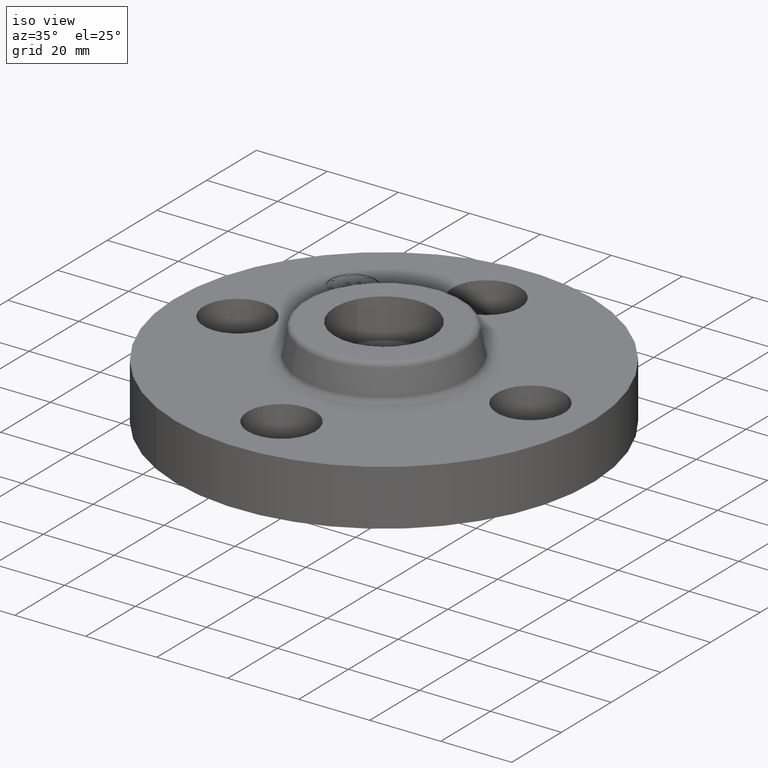
[diagram: clean part render]
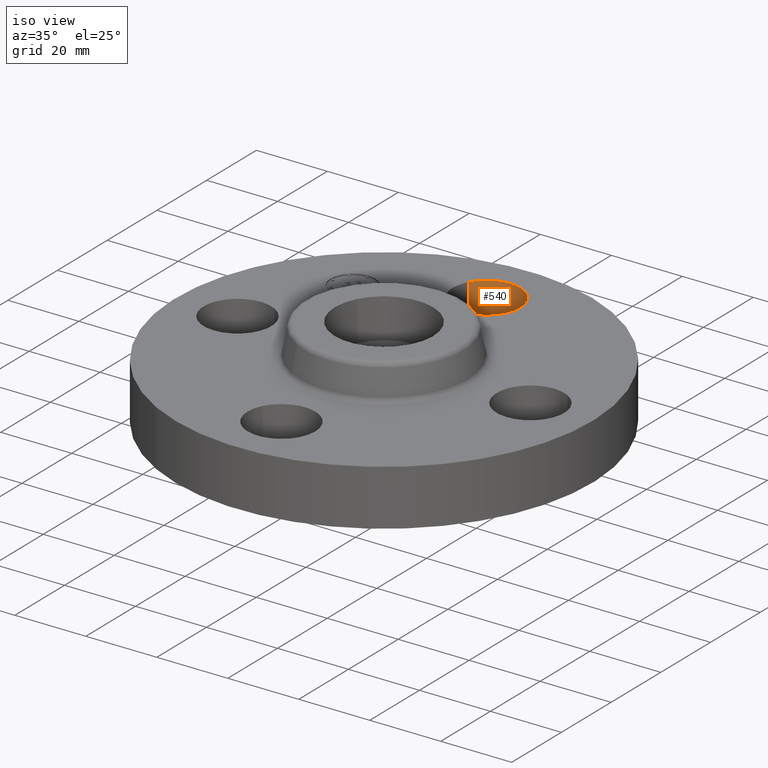
[diagram: same view with one face highlighted and labeled with its STEP entity id]
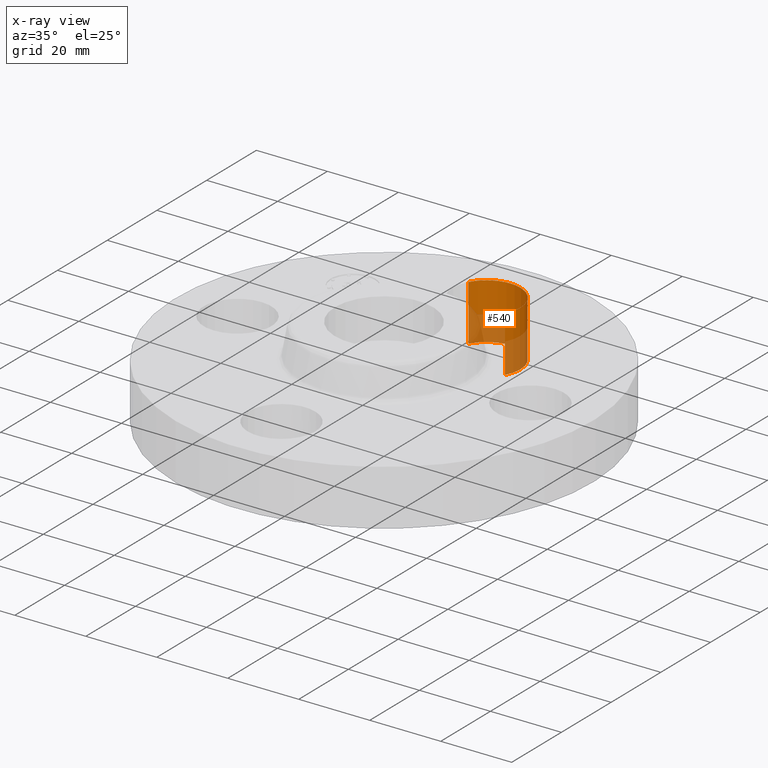
[diagram: x-ray of the same camera — body ghosted, the highlighted face saturated]
A machine part, iso view. The second image highlights one B-rep face of the part: STEP entity #540.
The next image is the same camera in x-ray: the body ghosted, the highlighted face saturated — about 44% of this face is hidden behind the body in this view.
In plain terms, the highlighted cylindrical surface (partial cylindrical patch) has radius 9.525 mm, axis along (0, -0, -1).
Its self-contained STEP definition (entity closure, byte-faithful):
#373=AXIS2_PLACEMENT_3D('Circle Axis2P3D',#371,#372,$) ;
#513=AXIS2_PLACEMENT_3D('Cylinder Axis2P3D',#510,#511,#512) ;
#531=AXIS2_PLACEMENT_3D('Circle Axis2P3D',#529,#530,$) ;
#368=CARTESIAN_POINT('Vertex',(0.32909346071,1.44521542303,0.)) ;
#371=CARTESIAN_POINT('Axis2P3D Location',(-6.99353086378E-017,1.62500000001,0.)) ;
#375=CARTESIAN_POINT('Vertex',(-0.32909346071,1.80478457698,0.)) ;
#510=CARTESIAN_POINT('Axis2P3D Location',(0.,1.62500000001,0.616062992128)) ;
#515=CARTESIAN_POINT('Line Origine',(-0.32909346071,1.80478457698,0.310000000001)) ;
#519=CARTESIAN_POINT('Vertex',(-0.32909346071,1.80478457698,0.620000000002)) ;
#522=CARTESIAN_POINT('Line Origine',(0.32909346071,1.44521542303,0.310000000001)) ;
#526=CARTESIAN_POINT('Vertex',(0.32909346071,1.44521542303,0.620000000002)) ;
#529=CARTESIAN_POINT('Axis2P3D Location',(0.,1.62500000001,0.620000000002)) ;
#372=DIRECTION('Axis2P3D Direction',(0.,0.,-0.0393700787402)) ;
#511=DIRECTION('Axis2P3D Direction',(0.,-0.,-0.0393700787402)) ;
#512=DIRECTION('Axis2P3D XDirection',(0.0345504945626,-0.0188750212049,0.)) ;
#516=DIRECTION('Vector Direction',(0.,0.,-0.0393700787402)) ;
#523=DIRECTION('Vector Direction',(0.,0.,-0.0393700787402)) ;
#530=DIRECTION('Axis2P3D Direction',(0.,-0.,-0.0393700787402)) ;
#517=VECTOR('Line Direction',#516,0.0393700787402) ;
#524=VECTOR('Line Direction',#523,0.0393700787402) ;
#535=ORIENTED_EDGE('',*,*,#521,.F.) ;
#536=ORIENTED_EDGE('',*,*,#377,.T.) ;
#537=ORIENTED_EDGE('',*,*,#528,.T.) ;
#538=ORIENTED_EDGE('',*,*,#533,.F.) ;
#540=ADVANCED_FACE('PartBody',(#539),#514,.F.) ;
#374=CIRCLE('generated circle',#373,0.375000000001) ;
#532=CIRCLE('generated circle',#531,0.375000000001) ;
#514=CYLINDRICAL_SURFACE('generated cylinder',#513,0.375000000001) ;
#377=EDGE_CURVE('',#376,#369,#374,.T.) ;
#521=EDGE_CURVE('',#376,#520,#518,.F.) ;
#528=EDGE_CURVE('',#369,#527,#525,.F.) ;
#533=EDGE_CURVE('',#520,#527,#532,.T.) ;
#534=EDGE_LOOP('',(#535,#536,#537,#538)) ;
#539=FACE_OUTER_BOUND('',#534,.T.) ;
#518=LINE('Line',#515,#517) ;
#525=LINE('Line',#522,#524) ;
#369=VERTEX_POINT('',#368) ;
#376=VERTEX_POINT('',#375) ;
#520=VERTEX_POINT('',#519) ;
#527=VERTEX_POINT('',#526) ;